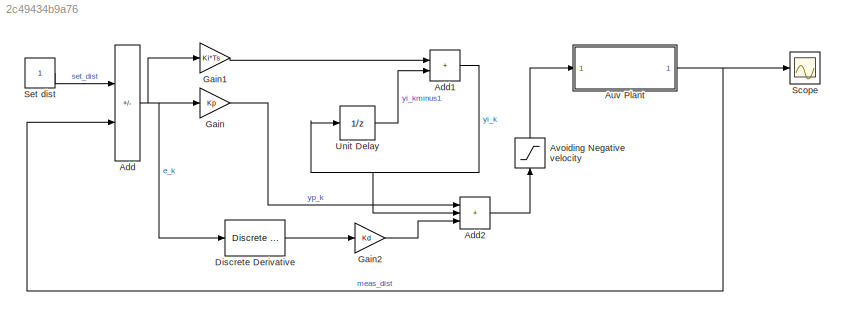
MODEL slx_2c49434b9a76
KIND model
CONFIG AbsTol = auto
CONFIG EnableMultiTasking = off
CONFIG FixedStep = auto
CONFIG MaxStep = auto
CONFIG MinStep = auto
CONFIG PreLoadFcn = Kp = 0.7 ;\nKi = 0.001;\nKd=0;\nTs=0.1;\nI_d=10;
CONFIG RelTol = 1e-3
CONFIG SampleTimeConstraint = Unconstrained
CONFIG SolverName = VariableStepAuto
CONFIG StartTime = 0.0
CONFIG StopTime = 10.0
WORKSPACE source: mxarray member
WORKSPACE courseObject: object (value not decoded)
WORKSPACE t_ans = [0 3.44882310802e-07 2.06929386481e-06 1.06913516349e-05 5.38016404852e-05 0.000269353084737 0.00134711030599 0.00673589641228 0.0246147261548 0.0493860964287 0.083811385317 0.129621810728 ... (144 elements, 144x1)]
WORKSPACE y_ans5 = [0.165 0.164998492878 0.164990957572 0.164953288613 0.164765132939 0.163829066348 0.159264513798 0.139100169013 0.2995349504 0.280074861211 0.411854808282 0.399795884174 ... (60 elements, 60x1)]
WORKSPACE y_ans6 = [0 0.000200949591965 0.00120565787659 0.00622820760954 0.0313161877119 0.156139821616 0.765211136192 3.47456129023 9.66726186092 14.4061638265 17.7295717319 19.7232109637 ... (66 elements, 66x1)]
WORKSPACE y_ans7 = [0 0.000200949591965 0.00120565787659 0.00622820760954 0.0313161877119 0.156139821616 0.765211136192 3.47456129023 9.66726186092 14.4061638265 17.7295717319 19.7232109637 ... (144 elements, 144x1)]
BLOCK [Sum] Add
  IconShape = rectangular
  Inputs = -+
BLOCK [Sum] Add1
  IconShape = rectangular
BLOCK [Sum] Add2
  IconShape = rectangular
  Inputs = +++
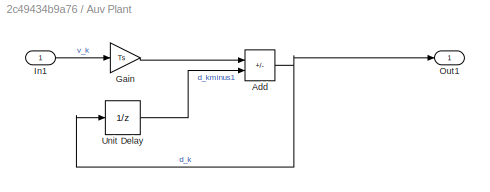
BLOCK [SubSystem] Auv Plant
BLOCK [Sum] Auv Plant/Add
  IconShape = rectangular
  Inputs = -+
BLOCK [Gain] Auv Plant/Gain
  Gain = Ts
BLOCK [Inport] Auv Plant/In1
BLOCK [Outport] Auv Plant/Out1
BLOCK [UnitDelay] Auv Plant/Unit Delay
  HasFrameUpgradeWarning = on
  InitialCondition = I_d
  SampleTime = -1
BLOCK [Saturate] Avoiding Negative velocity
  LowerLimit = 0
  NameLocation = right
  UpperLimit = 3
BLOCK [Reference] Discrete Derivative  REF=simulink/Discrete/Discrete Derivative
  SourceBlock = simulink/Discrete/Discrete Derivative
  SourceType = Discrete Derivative
BLOCK [Gain] Gain
  Gain = Kp
BLOCK [Gain] Gain1
  Gain = Ki*Ts
BLOCK [Gain] Gain2
  Gain = Kd
BLOCK [Scope] Scope
  ActiveDisplayYMaximum = 11.770840331890408
  ActiveDisplayYMinimum = -0.25855340299076346
  Floating = off
  GraphicalSettings = {"Style":{"BackgroundColor":[0.12941176470588237,0.12941176470588237,0.12941176470588237],"AxesColor":[0.07058823529411765,0.07058823529411765,0.07058823529411765],"LabelsColor":[0.8509803921568627,0.8509803921568627,0.8509803921568627],"PreserveColors":false,"Visible":[true],"LineStyle":["-"],"LineWidth":[1.5],"BarWidth":[0.9],"LineColor":["auto"],"LineFaceAlpha":[1],"LineEdgeAlpha":[1],"Marker":...<+2005ch>
  MultipleDisplayCache = [{"MaxYLimMag":10.786117033891577,"MaxYLimReal":11.770840331890408,"MinYLimMag":0,"MinYLimReal":-0.25855340299076346,"PlotAsMagnitudePhase":false,"ShowGrid":true,"ShowLegend":false,"Title":"%<SignalLabel>","YLabel":""}]
  NumInputPorts = 1
  ScopeFrameLocation = window
  WasSavedAsWebScope = on
  WindowPosition = [476.000000,281.000000,560.000000,420.000000,]
BLOCK [Constant] Set dist
BLOCK [UnitDelay] Unit Delay
  HasFrameUpgradeWarning = on
  SampleTime = Ts
NET Add1:1 -> Add2:2, Unit Delay:1
LINE Add2:1 -> Avoiding Negative velocity:1
NET Add:1 -> Discrete Derivative:1, Gain1:1, Gain:1
NET Auv Plant/Add:1 -> Auv Plant/Out1:1, Auv Plant/Unit Delay:1
LINE Auv Plant/Gain:1 -> Auv Plant/Add:1
LINE Auv Plant/In1:1 -> Auv Plant/Gain:1
LINE Auv Plant/Unit Delay:1 -> Auv Plant/Add:2
NET Auv Plant:1 -> Add:2, Scope:1
LINE Avoiding Negative velocity:1 -> Auv Plant:1
LINE Discrete Derivative:1 -> Gain2:1
LINE Gain1:1 -> Add1:1
LINE Gain2:1 -> Add2:3
LINE Gain:1 -> Add2:1
LINE Set dist:1 -> Add:1
LINE Unit Delay:1 -> Add1:2
note: NET lines group one-source signal fan-out (src -> all destinations, sorted); 1:1 wires keep LINE
